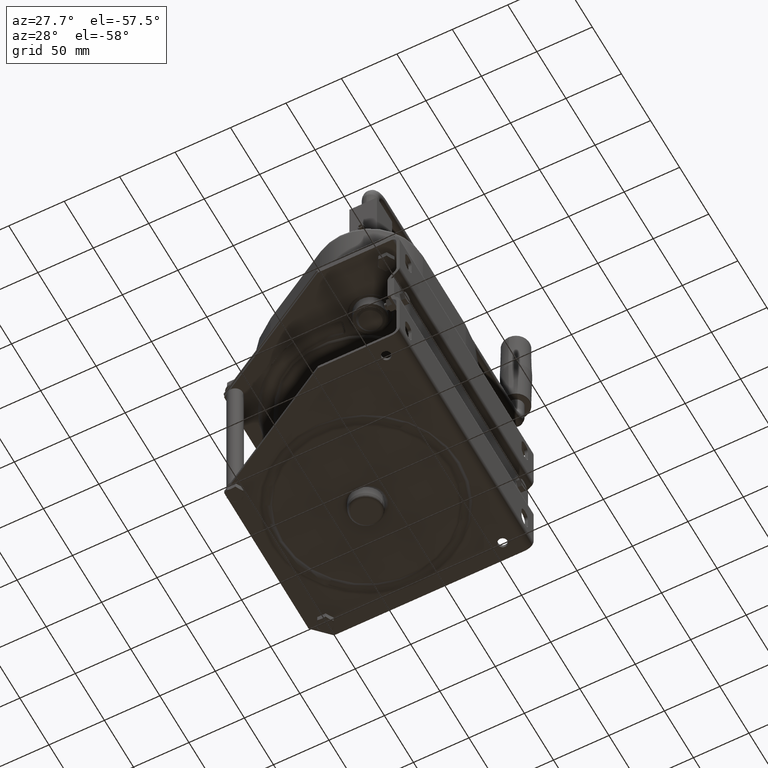
[diagram: clean part render]
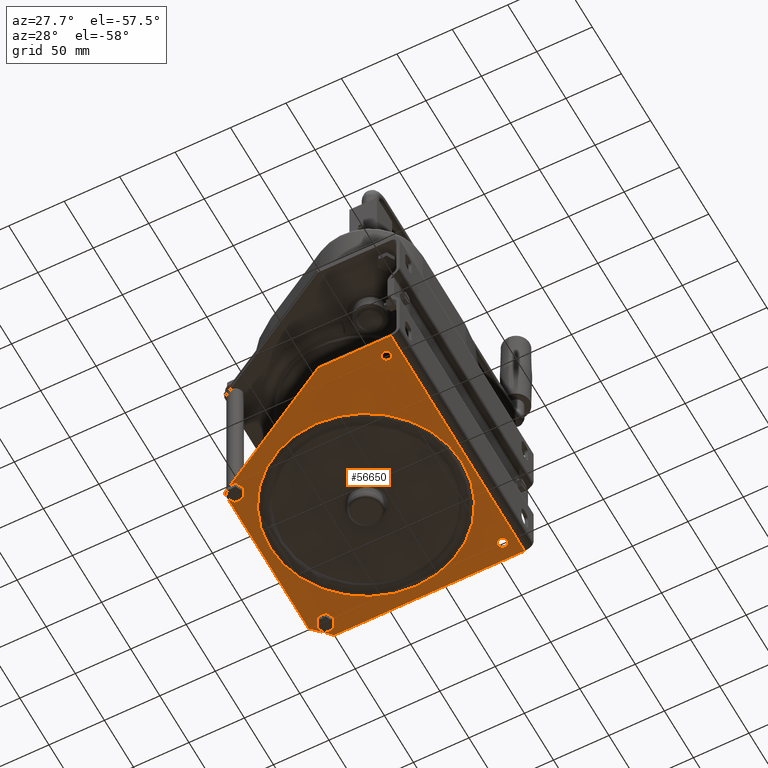
[diagram: same view with one face highlighted and labeled with its STEP entity id]
A machine part, auxiliary view. The second image highlights one B-rep face of the part: STEP entity #56650.
In plain terms, the highlighted planar face has unit normal (0, 0, -1).
Its self-contained STEP definition (entity closure, byte-faithful):
#50380=CARTESIAN_POINT('',(-92.,0.,-132.5));
#50390=VERTEX_POINT('',#50380);
#50550=CARTESIAN_POINT('',(-92.,0.,97.5));
#50560=VERTEX_POINT('',#50550);
#50590=CARTESIAN_POINT('',(-92.,0.,-107.281534200716));
#50600=DIRECTION('',(0.,0.,1.));
#50610=VECTOR('',#50600,1.);
#50620=LINE('',#50590,#50610);
#50630=EDGE_CURVE('',#50390,#50560,#50620,.T.);
#51690=CARTESIAN_POINT('',(0.,0.,-132.5));
#51700=DIRECTION('',(1.,0.,0.));
#51710=VECTOR('',#51700,1.);
#51720=LINE('',#51690,#51710);
#51730=CARTESIAN_POINT('',(-26.2435565298214,0.,-132.5));
#51740=VERTEX_POINT('',#51730);
#51750=EDGE_CURVE('',#50390,#51740,#51720,.T.);
#54190=CARTESIAN_POINT('',(79.9999999999999,0.,97.5));
#54200=VERTEX_POINT('',#54190);
#54230=CARTESIAN_POINT('',(0.,0.,97.5));
#54240=DIRECTION('',(-1.,0.,0.));
#54250=VECTOR('',#54240,1.);
#54260=LINE('',#54230,#54250);
#54270=EDGE_CURVE('',#54200,#50560,#54260,.T.);
#54860=CARTESIAN_POINT('',(-100.,0.,-132.5));
#54870=DIRECTION('',(0.,-1.,0.));
#54880=DIRECTION('',(0.,0.,1.));
#54890=AXIS2_PLACEMENT_3D('',#54860,#54870,#54880);
#54900=PLANE('',#54890);
#54910=CARTESIAN_POINT('',(0.,0.,0.));
#54920=DIRECTION('',(0.,1.,0.));
#54930=DIRECTION('',(1.,0.,0.));
#54940=AXIS2_PLACEMENT_3D('',#54910,#54920,#54930);
#54950=CIRCLE('',#54940,86.7082039324994);
#54960=CARTESIAN_POINT('',(86.7082039324994,0.,0.));
#54970=VERTEX_POINT('',#54960);
#54980=CARTESIAN_POINT('',(-86.7082039324994,0.,0.));
#54990=VERTEX_POINT('',#54980);
#55000=EDGE_CURVE('',#54970,#54990,#54950,.T.);
#55010=ORIENTED_EDGE('',*,*,#55000,.T.);
#55020=EDGE_CURVE('',#54990,#54970,#54950,.T.);
#55030=ORIENTED_EDGE('',*,*,#55020,.T.);
#55040=EDGE_LOOP('',(#55030,#55010));
#55050=FACE_BOUND('',#55040,.T.);
#55060=CARTESIAN_POINT('',(-80.,0.,82.5));
#55070=DIRECTION('',(0.,1.,0.));
#55080=DIRECTION('',(-1.,0.,0.));
#55090=AXIS2_PLACEMENT_3D('',#55060,#55070,#55080);
#55100=CIRCLE('',#55090,4.25);
#55110=CARTESIAN_POINT('',(-84.25,0.,82.5));
#55120=VERTEX_POINT('',#55110);
#55130=CARTESIAN_POINT('',(-75.75,0.,82.5));
#55140=VERTEX_POINT('',#55130);
#55150=EDGE_CURVE('',#55120,#55140,#55100,.T.);
#55160=ORIENTED_EDGE('',*,*,#55150,.T.);
#55170=EDGE_CURVE('',#55140,#55120,#55100,.T.);
#55180=ORIENTED_EDGE('',*,*,#55170,.T.);
#55190=EDGE_LOOP('',(#55180,#55160));
#55200=FACE_BOUND('',#55190,.T.);
#55210=CARTESIAN_POINT('',(-80.,0.,-117.5));
#55220=DIRECTION('',(0.,1.,0.));
#55230=DIRECTION('',(-1.,0.,0.));
#55240=AXIS2_PLACEMENT_3D('',#55210,#55220,#55230);
#55250=CIRCLE('',#55240,4.25);
#55260=CARTESIAN_POINT('',(-84.25,0.,-117.5));
#55270=VERTEX_POINT('',#55260);
#55280=CARTESIAN_POINT('',(-75.75,0.,-117.5));
#55290=VERTEX_POINT('',#55280);
#55300=EDGE_CURVE('',#55270,#55290,#55250,.T.);
#55310=ORIENTED_EDGE('',*,*,#55300,.T.);
#55320=EDGE_CURVE('',#55290,#55270,#55250,.T.);
#55330=ORIENTED_EDGE('',*,*,#55320,.T.);
#55340=EDGE_LOOP('',(#55330,#55310));
#55350=FACE_BOUND('',#55340,.T.);
#55360=ORIENTED_EDGE('',*,*,#50630,.F.);
#55370=ORIENTED_EDGE('',*,*,#54270,.T.);
#55380=CARTESIAN_POINT('',(284.781534200716,0.,-107.281534200716));
#55390=DIRECTION('',(0.707106781186548,0.,-0.707106781186548));
#55400=VECTOR('',#55390,1.);
#55410=LINE('',#55380,#55400);
#55420=CARTESIAN_POINT('',(94.9999999999999,0.,82.5000000000001));
#55430=VERTEX_POINT('',#55420);
#55440=EDGE_CURVE('',#54200,#55430,#55410,.T.);
#55450=ORIENTED_EDGE('',*,*,#55440,.F.);
#55460=CARTESIAN_POINT('',(95.,0.,0.));
#55470=DIRECTION('',(-8.88178419700125E-17,0.,1.));
#55480=VECTOR('',#55470,1.);
#55490=LINE('',#55460,#55480);
#55500=CARTESIAN_POINT('',(95.,0.,-62.5));
#55510=VERTEX_POINT('',#55500);
#55520=EDGE_CURVE('',#55510,#55430,#55490,.T.);
#55530=ORIENTED_EDGE('',*,*,#55520,.T.);
#55540=CARTESIAN_POINT('',(0.,0.,-117.348275573014));
#55550=DIRECTION('',(0.866025403784439,0.,0.5));
#55560=VECTOR('',#55550,1.);
#55570=LINE('',#55540,#55560);
#55580=CARTESIAN_POINT('',(91.3432667397366,0.,-64.6112159321677));
#55590=VERTEX_POINT('',#55580);
#55600=EDGE_CURVE('',#55590,#55510,#55570,.T.);
#55610=ORIENTED_EDGE('',*,*,#55600,.T.);
#55620=CARTESIAN_POINT('',(73.1303440286693,-2.8421709430404E-14,
-96.1569234220613));
#55630=DIRECTION('',(0.5,0.,0.866025403784439));
#55640=VECTOR('',#55630,1.);
#55650=LINE('',#55620,#55640);
#55660=CARTESIAN_POINT('',(94.0055534994651,0.,-60.));
#55670=VERTEX_POINT('',#55660);
#55680=EDGE_CURVE('',#55590,#55670,#55650,.T.);
#55690=ORIENTED_EDGE('',*,*,#55680,.F.);
#55700=CARTESIAN_POINT('',(114.880762970261,0.,-96.1569234220613));
#55710=DIRECTION('',(-0.5,0.,0.866025403784439));
#55720=VECTOR('',#55710,1.);
#55730=LINE('',#55700,#55720);
#55740=CARTESIAN_POINT('',(90.2527767497325,0.,-53.5));
#55750=VERTEX_POINT('',#55740);
#55760=EDGE_CURVE('',#55670,#55750,#55730,.T.);
#55770=ORIENTED_EDGE('',*,*,#55760,.F.);
#55780=CARTESIAN_POINT('',(-65.2373220768531,0.,-53.5000000000001));
#55790=DIRECTION('',(-1.,0.,-3.55008495947735E-16));
#55800=VECTOR('',#55790,1.);
#55810=LINE('',#55780,#55800);
#55820=CARTESIAN_POINT('',(82.7472232502674,2.8421709430404E-14,-53.5));
#55830=VERTEX_POINT('',#55820);
#55840=EDGE_CURVE('',#55750,#55830,#55810,.T.);
#55850=ORIENTED_EDGE('',*,*,#55840,.F.);
#55860=CARTESIAN_POINT('',(58.1192370297391,2.8421709430404E-14,
-96.1569234220613));
#55870=DIRECTION('',(-0.5,0.,-0.866025403784439));
#55880=VECTOR('',#55870,1.);
#55890=LINE('',#55860,#55880);
#55900=CARTESIAN_POINT('',(78.9944465005349,2.8421709430404E-14,-60.));
#55910=VERTEX_POINT('',#55900);
#55920=EDGE_CURVE('',#55830,#55910,#55890,.T.);
#55930=ORIENTED_EDGE('',*,*,#55920,.F.);
#55940=CARTESIAN_POINT('',(99.8696559713307,0.,-96.1569234220613));
#55950=DIRECTION('',(0.5,0.,-0.866025403784438));
#55960=VECTOR('',#55950,1.);
#55970=LINE('',#55940,#55960);
#55980=CARTESIAN_POINT('',(82.7472232502674,0.,-66.5));
#55990=VERTEX_POINT('',#55980);
#56000=EDGE_CURVE('',#55910,#55990,#55970,.T.);
#56010=ORIENTED_EDGE('',*,*,#56000,.F.);
#56020=CARTESIAN_POINT('',(-65.2373220768531,0.,-66.5000000000001));
#56030=DIRECTION('',(1.,0.,3.55008495947735E-16));
#56040=VECTOR('',#56030,1.);
#56050=LINE('',#56020,#56040);
#56060=CARTESIAN_POINT('',(88.0717967697245,0.,-66.5));
#56070=VERTEX_POINT('',#56060);
#56080=EDGE_CURVE('',#55990,#56070,#56050,.T.);
#56090=ORIENTED_EDGE('',*,*,#56080,.F.);
#56100=EDGE_CURVE('',#51740,#56070,#55570,.T.);
#56110=ORIENTED_EDGE('',*,*,#56100,.T.);
#56120=ORIENTED_EDGE('',*,*,#51750,.T.);
#56130=EDGE_LOOP('',(#56120,#56110,#56090,#56010,#55930,#55850,#55770,
#55690,#55610,#55530,#55450,#55370,#55360));
#56140=FACE_OUTER_BOUND('',#56130,.T.);
#56150=CARTESIAN_POINT('',(175.642069330852,0.,-96.1569234220613));
#56160=DIRECTION('',(0.5,0.,-0.866025403784438));
#56170=VECTOR('',#56160,1.);
#56180=LINE('',#56150,#56170);
#56190=CARTESIAN_POINT('',(72.4944465005349,2.8421709430404E-14,82.5));
#56200=VERTEX_POINT('',#56190);
#56210=CARTESIAN_POINT('',(76.2472232502674,0.,76.));
#56220=VERTEX_POINT('',#56210);
#56230=EDGE_CURVE('',#56200,#56220,#56180,.T.);
#56240=ORIENTED_EDGE('',*,*,#56230,.F.);
#56250=CARTESIAN_POINT('',(-65.2373220768531,0.,75.9999999999999));
#56260=DIRECTION('',(1.,0.,3.55008495947735E-16));
#56270=VECTOR('',#56260,1.);
#56280=LINE('',#56250,#56270);
#56290=CARTESIAN_POINT('',(83.7527767497326,-2.8421709430404E-14,
76.0000000000001));
#56300=VERTEX_POINT('',#56290);
#56310=EDGE_CURVE('',#56220,#56300,#56280,.T.);
#56320=ORIENTED_EDGE('',*,*,#56310,.F.);
#56330=CARTESIAN_POINT('',(-15.6420693308523,-2.8421709430404E-14,
-96.1569234220613));
#56340=DIRECTION('',(0.5,0.,0.866025403784439));
#56350=VECTOR('',#56340,1.);
#56360=LINE('',#56330,#56350);
#56370=CARTESIAN_POINT('',(87.5055534994651,0.,82.5));
#56380=VERTEX_POINT('',#56370);
#56390=EDGE_CURVE('',#56300,#56380,#56360,.T.);
#56400=ORIENTED_EDGE('',*,*,#56390,.F.);
#56410=CARTESIAN_POINT('',(190.653176329783,0.,-96.1569234220613));
#56420=DIRECTION('',(-0.5,0.,0.866025403784439));
#56430=VECTOR('',#56420,1.);
#56440=LINE('',#56410,#56430);
#56450=CARTESIAN_POINT('',(83.7527767497325,0.,89.));
#56460=VERTEX_POINT('',#56450);
#56470=EDGE_CURVE('',#56380,#56460,#56440,.T.);
#56480=ORIENTED_EDGE('',*,*,#56470,.F.);
#56490=CARTESIAN_POINT('',(-65.2373220768531,0.,88.9999999999999));
#56500=DIRECTION('',(-1.,0.,-3.55008495947735E-16));
#56510=VECTOR('',#56500,1.);
#56520=LINE('',#56490,#56510);
#56530=CARTESIAN_POINT('',(76.2472232502674,2.8421709430404E-14,89.));
#56540=VERTEX_POINT('',#56530);
#56550=EDGE_CURVE('',#56460,#56540,#56520,.T.);
#56560=ORIENTED_EDGE('',*,*,#56550,.F.);
#56570=CARTESIAN_POINT('',(-30.6531763297825,2.8421709430404E-14,
-96.1569234220613));
#56580=DIRECTION('',(-0.5,0.,-0.866025403784439));
#56590=VECTOR('',#56580,1.);
#56600=LINE('',#56570,#56590);
#56610=EDGE_CURVE('',#56540,#56200,#56600,.T.);
#56620=ORIENTED_EDGE('',*,*,#56610,.F.);
#56630=EDGE_LOOP('',(#56620,#56560,#56480,#56400,#56320,#56240));
#56640=FACE_BOUND('',#56630,.T.);
#56650=ADVANCED_FACE('',(#55050,#55200,#55350,#56140,#56640),#54900,.T.)
;